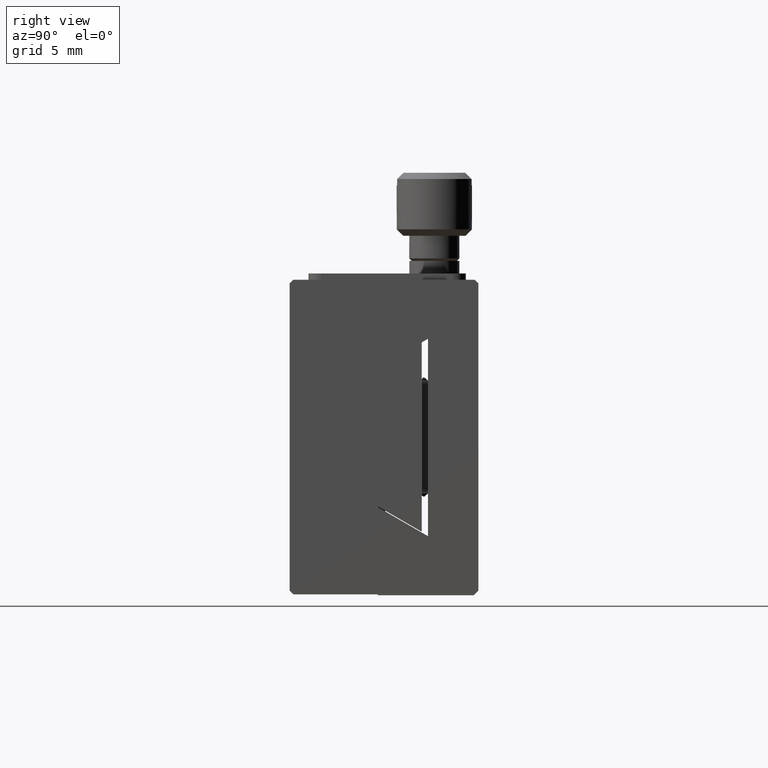
[diagram: clean part render]
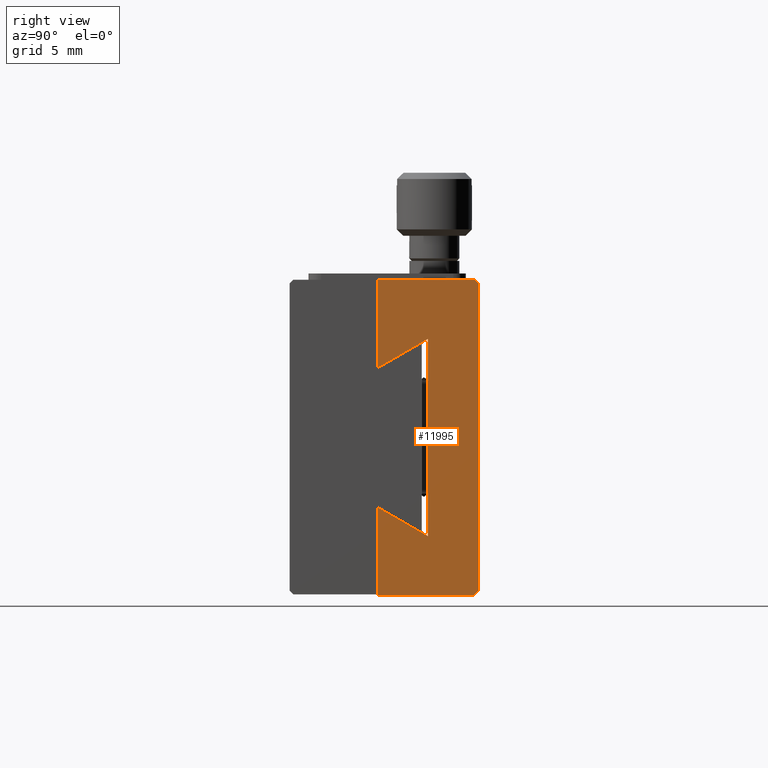
[diagram: same view with one face highlighted and labeled with its STEP entity id]
A machine part, right view. The second image highlights one B-rep face of the part: STEP entity #11995.
In plain terms, the highlighted planar face has unit normal (1, 0, 0).
Its self-contained STEP definition (entity closure, byte-faithful):
#66 = CARTESIAN_POINT ( 'NONE',  ( 25.00000000000000000, 15.00000000000000355, -0.2999999999999869993 ) ) ;
#211 = CARTESIAN_POINT ( 'NONE',  ( 25.00000000000000000, 15.00000000000000178, -24.69999999999999929 ) ) ;
#227 = CARTESIAN_POINT ( 'NONE',  ( 25.00000000000000000, 11.00000000000000000, 0.000000000000000000 ) ) ;
#429 = AXIS2_PLACEMENT_3D ( 'NONE', #5504, #3579, #812 ) ;
#653 = VERTEX_POINT ( 'NONE', #2074 ) ;
#805 = ORIENTED_EDGE ( 'NONE', *, *, #1588, .T. ) ;
#812 = DIRECTION ( 'NONE',  ( 0.000000000000000000, 0.000000000000000000, -1.000000000000000000 ) ) ;
#944 = VERTEX_POINT ( 'NONE', #9347 ) ;
#1061 = LINE ( 'NONE', #2820, #6210 ) ;
#1249 = VECTOR ( 'NONE', #2688, 1000.000000000000000 ) ;
#1402 = VERTEX_POINT ( 'NONE', #7071 ) ;
#1588 = EDGE_CURVE ( 'NONE', #6826, #7284, #4337, .T. ) ;
#1618 = CARTESIAN_POINT ( 'NONE',  ( 25.00000000000000000, 6.999999999999999112, -18.06500000000000128 ) ) ;
#1649 = ORIENTED_EDGE ( 'NONE', *, *, #7351, .T. ) ;
#1830 = DIRECTION ( 'NONE',  ( 0.000000000000000000, 0.000000000000000000, -1.000000000000000000 ) ) ;
#1935 = LINE ( 'NONE', #66, #1249 ) ;
#2035 = EDGE_CURVE ( 'NONE', #4994, #653, #1935, .T. ) ;
#2074 = CARTESIAN_POINT ( 'NONE',  ( 25.00000000000000000, 14.70000000000004725, -3.693551541006367955E-15 ) ) ;
#2282 = VERTEX_POINT ( 'NONE', #8704 ) ;
#2418 = CARTESIAN_POINT ( 'NONE',  ( 25.00000000000000000, 15.00000000000000355, -0.2999999999999870548 ) ) ;
#2467 = ORIENTED_EDGE ( 'NONE', *, *, #6573, .T. ) ;
#2512 = VECTOR ( 'NONE', #2927, 1000.000000000000000 ) ;
#2656 = DIRECTION ( 'NONE',  ( 0.000000000000000000, 0.8659692529111527870, 0.5000972435561906737 ) ) ;
#2688 = DIRECTION ( 'NONE',  ( -0.000000000000000000, -0.7071067811865140440, 0.7071067811865809905 ) ) ;
#2820 = CARTESIAN_POINT ( 'NONE',  ( 25.00000000000000000, 15.00000000000000000, -3.632077277826439854E-15 ) ) ;
#2840 = EDGE_LOOP ( 'NONE', ( #4062, #4766, #5165, #9360, #8186, #8668, #3025, #2467, #1649, #805 ) ) ;
#2927 = DIRECTION ( 'NONE',  ( -0.000000000000000000, 1.000000000000000000, 0.000000000000000000 ) ) ;
#3025 = ORIENTED_EDGE ( 'NONE', *, *, #7927, .T. ) ;
#3463 = DIRECTION ( 'NONE',  ( 0.000000000000000000, 0.7080734329827843565, 0.7061388061167397368 ) ) ;
#3579 = DIRECTION ( 'NONE',  ( 1.000000000000000000, 0.000000000000000000, 0.000000000000000000 ) ) ;
#4062 = ORIENTED_EDGE ( 'NONE', *, *, #5168, .T. ) ;
#4200 = LINE ( 'NONE', #5941, #6719 ) ;
#4204 = VECTOR ( 'NONE', #3463, 999.9999999999998863 ) ;
#4337 = LINE ( 'NONE', #11986, #4204 ) ;
#4766 = ORIENTED_EDGE ( 'NONE', *, *, #2035, .T. ) ;
#4994 = VERTEX_POINT ( 'NONE', #2418 ) ;
#5165 = ORIENTED_EDGE ( 'NONE', *, *, #10850, .T. ) ;
#5168 = EDGE_CURVE ( 'NONE', #7284, #4994, #5949, .T. ) ;
#5329 = VECTOR ( 'NONE', #1830, 1000.000000000000000 ) ;
#5423 = CARTESIAN_POINT ( 'NONE',  ( 25.00000000000000000, 15.00000000000000000, -24.69999999999999929 ) ) ;
#5480 = EDGE_CURVE ( 'NONE', #1402, #944, #11306, .T. ) ;
#5504 = CARTESIAN_POINT ( 'NONE',  ( 25.00000000000000000, 15.00000000000000000, 0.000000000000000000 ) ) ;
#5550 = CARTESIAN_POINT ( 'NONE',  ( 25.00000000000000000, 15.00000000000000000, -25.06500000000000128 ) ) ;
#5874 = DIRECTION ( 'NONE',  ( 0.000000000000000000, 0.000000000000000000, -1.000000000000000000 ) ) ;
#5941 = CARTESIAN_POINT ( 'NONE',  ( 25.00000000000000000, 11.00000000000000000, -20.37500000000000000 ) ) ;
#5949 = LINE ( 'NONE', #211, #9067 ) ;
#6210 = VECTOR ( 'NONE', #8426, 1000.000000000000000 ) ;
#6573 = EDGE_CURVE ( 'NONE', #8528, #6801, #6637, .T. ) ;
#6637 = LINE ( 'NONE', #7629, #5329 ) ;
#6719 = VECTOR ( 'NONE', #9742, 1000.000000000000114 ) ;
#6801 = VERTEX_POINT ( 'NONE', #7238 ) ;
#6826 = VERTEX_POINT ( 'NONE', #11971 ) ;
#7071 = CARTESIAN_POINT ( 'NONE',  ( 25.00000000000000000, 6.999999999999999112, -3.205160538812779033E-15 ) ) ;
#7195 = VECTOR ( 'NONE', #2656, 1000.000000000000114 ) ;
#7238 = CARTESIAN_POINT ( 'NONE',  ( 25.00000000000000000, 6.999999999999999112, -25.06500000000000128 ) ) ;
#7256 = LINE ( 'NONE', #9246, #7195 ) ;
#7284 = VERTEX_POINT ( 'NONE', #5423 ) ;
#7351 = EDGE_CURVE ( 'NONE', #6801, #6826, #10279, .T. ) ;
#7453 = VERTEX_POINT ( 'NONE', #11707 ) ;
#7629 = CARTESIAN_POINT ( 'NONE',  ( 25.00000000000000000, 6.999999999999999112, 0.000000000000000000 ) ) ;
#7927 = EDGE_CURVE ( 'NONE', #7453, #8528, #4200, .T. ) ;
#8176 = PLANE ( 'NONE',  #429 ) ;
#8186 = ORIENTED_EDGE ( 'NONE', *, *, #10349, .T. ) ;
#8426 = DIRECTION ( 'NONE',  ( 0.000000000000000000, -1.000000000000000000, -0.000000000000000000 ) ) ;
#8528 = VERTEX_POINT ( 'NONE', #1618 ) ;
#8668 = ORIENTED_EDGE ( 'NONE', *, *, #9644, .T. ) ;
#8704 = CARTESIAN_POINT ( 'NONE',  ( 25.00000000000000000, 11.00000000000000000, -4.689999999999999503 ) ) ;
#8768 = LINE ( 'NONE', #227, #9538 ) ;
#9067 = VECTOR ( 'NONE', #11686, 1000.000000000000000 ) ;
#9232 = FACE_OUTER_BOUND ( 'NONE', #2840, .T. ) ;
#9246 = CARTESIAN_POINT ( 'NONE',  ( 25.00000000000000000, 6.999999999999999112, -7.000000000000000000 ) ) ;
#9347 = CARTESIAN_POINT ( 'NONE',  ( 25.00000000000000000, 6.999999999999999112, -6.999999999999999112 ) ) ;
#9360 = ORIENTED_EDGE ( 'NONE', *, *, #5480, .T. ) ;
#9538 = VECTOR ( 'NONE', #10523, 1000.000000000000000 ) ;
#9552 = CARTESIAN_POINT ( 'NONE',  ( 25.00000000000000000, 6.999999999999999112, 0.000000000000000000 ) ) ;
#9644 = EDGE_CURVE ( 'NONE', #2282, #7453, #8768, .T. ) ;
#9742 = DIRECTION ( 'NONE',  ( 0.000000000000000000, -0.8659692529111527870, 0.5000972435561906737 ) ) ;
#9854 = VECTOR ( 'NONE', #5874, 1000.000000000000000 ) ;
#10279 = LINE ( 'NONE', #5550, #2512 ) ;
#10349 = EDGE_CURVE ( 'NONE', #944, #2282, #7256, .T. ) ;
#10523 = DIRECTION ( 'NONE',  ( 0.000000000000000000, 0.000000000000000000, -1.000000000000000000 ) ) ;
#10850 = EDGE_CURVE ( 'NONE', #653, #1402, #1061, .T. ) ;
#11306 = LINE ( 'NONE', #9552, #9854 ) ;
#11686 = DIRECTION ( 'NONE',  ( -0.000000000000000000, 6.067341726462099832E-17, 1.000000000000000000 ) ) ;
#11707 = CARTESIAN_POINT ( 'NONE',  ( 25.00000000000000000, 11.00000000000000000, -20.37499999999999645 ) ) ;
#11971 = CARTESIAN_POINT ( 'NONE',  ( 25.00000000000000000, 14.63400000000001455, -25.06500000000000128 ) ) ;
#11986 = CARTESIAN_POINT ( 'NONE',  ( 25.00000000000000000, 14.63400000000001455, -25.06500000000000128 ) ) ;
#11995 = ADVANCED_FACE ( 'NONE', ( #9232 ), #8176, .T. ) ;